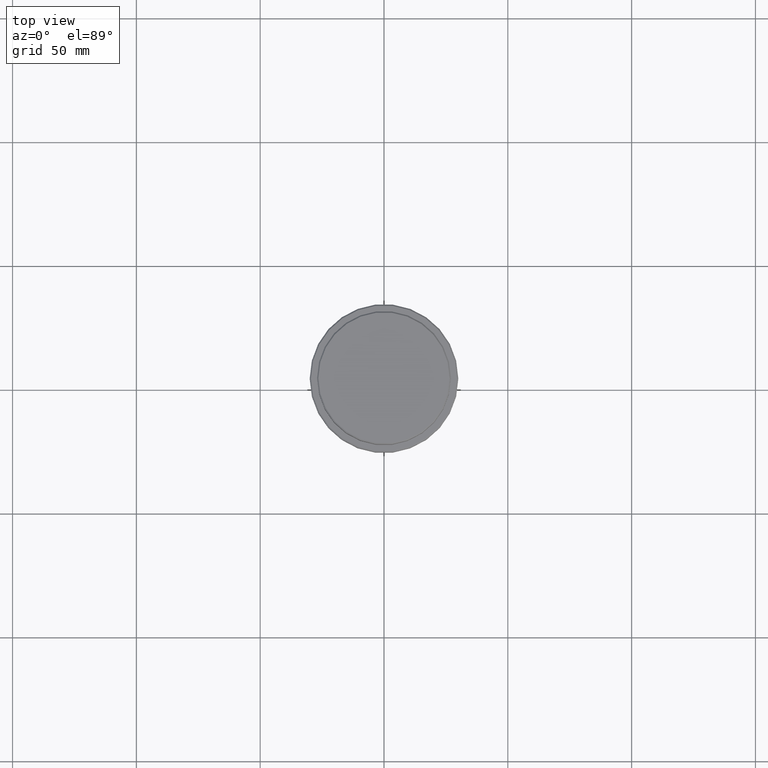
[diagram: clean part render]
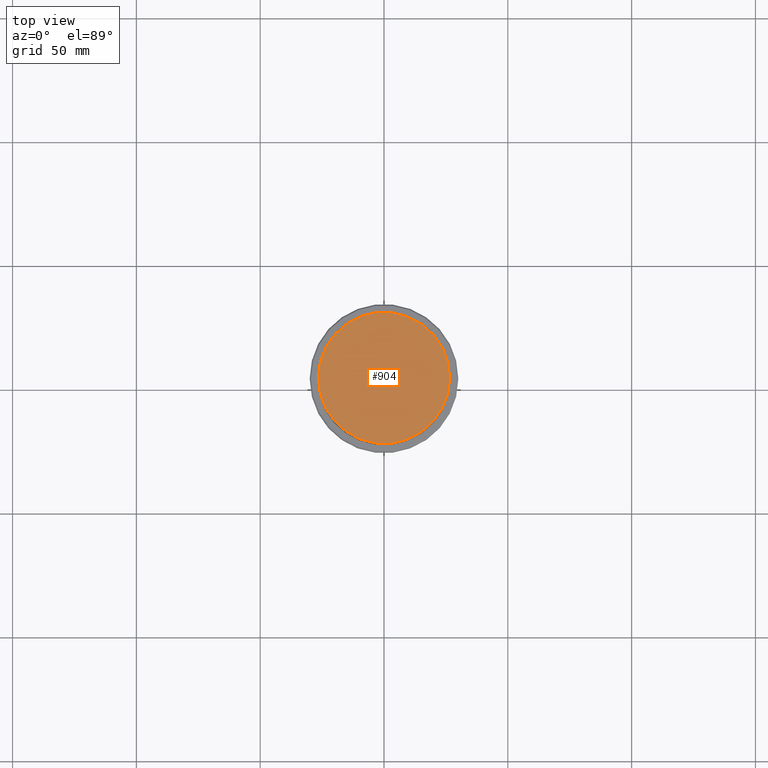
[diagram: same view with one face highlighted and labeled with its STEP entity id]
A machine part, top view. The second image highlights one B-rep face of the part: STEP entity #904.
In plain terms, the highlighted planar face has unit normal (0, -0, 1).
Its self-contained STEP definition (entity closure, byte-faithful):
#26 = EDGE_CURVE ( 'NONE', #65, #797, #832, .T. ) ;
#57 = DIRECTION ( 'NONE',  ( 1.000000000000000000, 0.000000000000000000, 0.000000000000000000 ) ) ;
#65 = VERTEX_POINT ( 'NONE', #495 ) ;
#74 = DIRECTION ( 'NONE',  ( 1.000000000000000000, 0.000000000000000000, 0.000000000000000000 ) ) ;
#308 = DIRECTION ( 'NONE',  ( 0.000000000000000000, -0.000000000000000000, 1.000000000000000000 ) ) ;
#399 = DIRECTION ( 'NONE',  ( -0.000000000000000000, -0.000000000000000000, 1.000000000000000000 ) ) ;
#475 = CARTESIAN_POINT ( 'NONE',  ( 0.000000000000000000, 0.000000000000000000, 0.000000000000000000 ) ) ;
#490 = CARTESIAN_POINT ( 'NONE',  ( 26.49999999999999645, 3.275930187719169552E-15, 0.000000000000000000 ) ) ;
#495 = CARTESIAN_POINT ( 'NONE',  ( -26.49999999999999645, 0.000000000000000000, 0.000000000000000000 ) ) ;
#719 = CARTESIAN_POINT ( 'NONE',  ( 0.000000000000000000, 0.000000000000000000, 0.000000000000000000 ) ) ;
#797 = VERTEX_POINT ( 'NONE', #490 ) ;
#825 = DIRECTION ( 'NONE',  ( 1.000000000000000000, 0.000000000000000000, 0.000000000000000000 ) ) ;
#832 = CIRCLE ( 'NONE', #1117, 26.49999999999999645 ) ;
#874 = EDGE_CURVE ( 'NONE', #797, #65, #1074, .T. ) ;
#904 = ADVANCED_FACE ( 'NONE', ( #1277 ), #1065, .T. ) ;
#953 = AXIS2_PLACEMENT_3D ( 'NONE', #719, #308, #825 ) ;
#1040 = ORIENTED_EDGE ( 'NONE', *, *, #26, .T. ) ;
#1061 = CARTESIAN_POINT ( 'NONE',  ( 0.000000000000000000, 0.000000000000000000, 0.000000000000000000 ) ) ;
#1065 = PLANE ( 'NONE',  #953 ) ;
#1074 = CIRCLE ( 'NONE', #1370, 26.49999999999999645 ) ;
#1078 = ORIENTED_EDGE ( 'NONE', *, *, #874, .T. ) ;
#1117 = AXIS2_PLACEMENT_3D ( 'NONE', #475, #1343, #57 ) ;
#1207 = EDGE_LOOP ( 'NONE', ( #1040, #1078 ) ) ;
#1277 = FACE_OUTER_BOUND ( 'NONE', #1207, .T. ) ;
#1343 = DIRECTION ( 'NONE',  ( -0.000000000000000000, -0.000000000000000000, 1.000000000000000000 ) ) ;
#1370 = AXIS2_PLACEMENT_3D ( 'NONE', #1061, #399, #74 ) ;